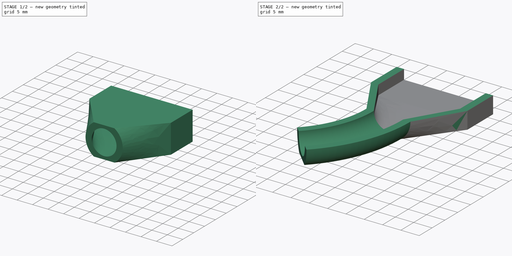
[diagram: build sequence overview — one tinted view per stage of 2, left to right]
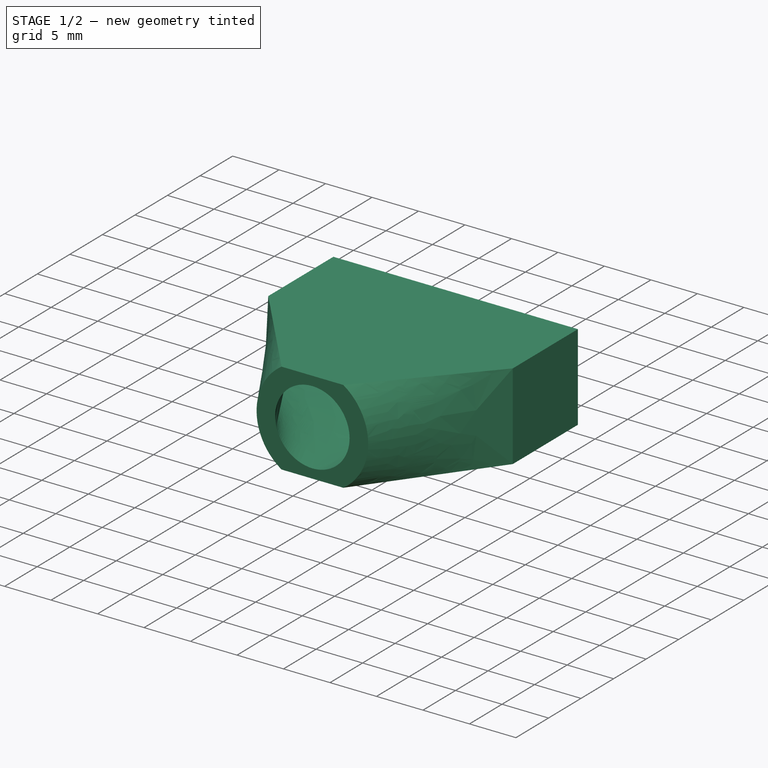
[diagram: stage 1 of 2 — iso view after this stage's code; geometry added in this stage tinted green]
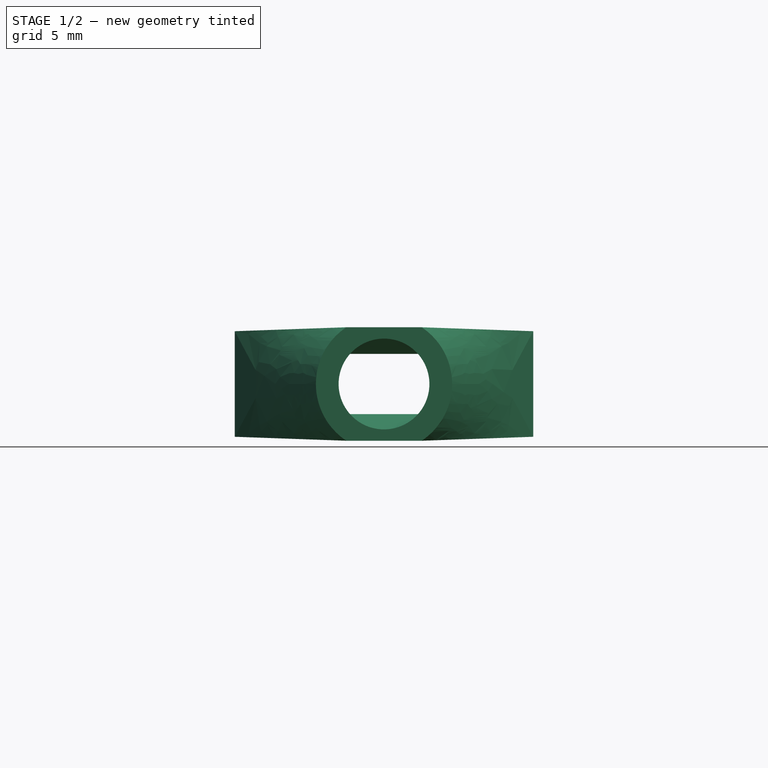
[diagram: stage 1 of 2 — front view after this stage's code; geometry added in this stage tinted green]
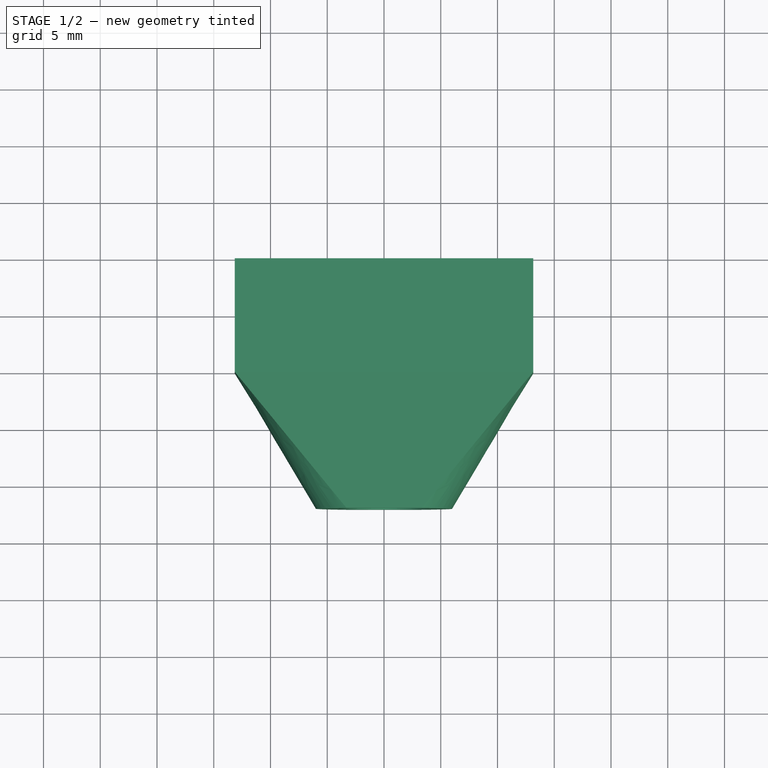
[diagram: stage 1 of 2 — top view after this stage's code; geometry added in this stage tinted green]
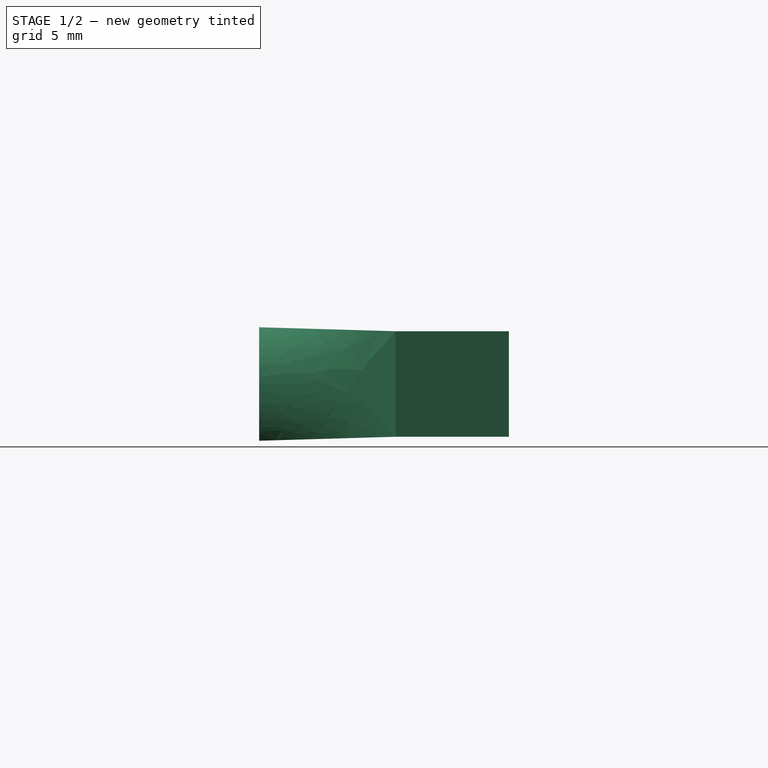
[diagram: stage 1 of 2 — right view after this stage's code; geometry added in this stage tinted green]
FCSTD DOCUMENT  (FreeCAD 0.20R29410 (Git))
Label: jst-xh_sleeve
License: All rights reserved
LicenseURL: http://en.wikipedia.org/wiki/All_rights_reserved
objects: Sketcher::SketchObject×5, PartDesign::Pad×1, PartDesign::AdditiveLoft×1, PartDesign::AdditivePipe×1, PartDesign::Pocket×1, PartDesign::Body×1
note: 14 computed .brp shape members not serialized (recipe doc carries the construction recipe); baked Part::Feature solids carry a one-line shape summary decoded from their .brp

FEATURE [Sketcher::SketchObject] Sketch
  FullyConstrained = true
  MapMode = 5
  Placement = pos=(0,0,0) rot=(1,0,0;1.5708rad)
  Support = -> [XZ_Plane]
  sketch-geometry (14):
    g0: LineSegment StartX=-11.15 StartY=2.65 StartZ=0 EndX=11.15 EndY=2.65 EndZ=0
    g1: LineSegment StartX=11.15 StartY=2.65 StartZ=0 EndX=11.15 EndY=-2.65 EndZ=0
    g2: LineSegment StartX=11.15 StartY=-2.65 StartZ=0 EndX=-11.15 EndY=-2.65 EndZ=0
    g3: LineSegment StartX=-11.15 StartY=-2.65 StartZ=0 EndX=-11.15 EndY=2.65 EndZ=0
    g4: LineSegment StartX=-11.15 StartY=2.65 StartZ=0 EndX=0 EndY=0 EndZ=0
    g5: LineSegment StartX=0 StartY=0 StartZ=0 EndX=11.15 EndY=2.65 EndZ=0
    g6: LineSegment StartX=0 StartY=0 StartZ=0 EndX=11.15 EndY=-2.65 EndZ=0
    g7: LineSegment StartX=-13.15 StartY=4.65 StartZ=0 EndX=13.15 EndY=4.65 EndZ=0
    g8: LineSegment StartX=13.15 StartY=4.65 StartZ=0 EndX=13.15 EndY=-4.65 EndZ=0
    g9: LineSegment StartX=13.15 StartY=-4.65 StartZ=0 EndX=-13.15 EndY=-4.65 EndZ=0
    g10: LineSegment StartX=-13.15 StartY=-4.65 StartZ=0 EndX=-13.15 EndY=4.65 EndZ=0
    g11: LineSegment StartX=-13.15 StartY=4.65 StartZ=0 EndX=-11.15 EndY=2.65 EndZ=0
    g12: LineSegment StartX=11.15 StartY=-2.65 StartZ=0 EndX=13.15 EndY=-4.65 EndZ=0
    g13: LineSegment StartX=11.15 StartY=2.65 StartZ=0 EndX=13.15 EndY=4.65 EndZ=0
  constraints (36):
    c: Coincident(g0,g1)
    c: Coincident(g1,g2)
    c: Coincident(g2,g3)
    c: Coincident(g3,g0)
    c: Horizontal(g0)
    c: Horizontal(g2)
    c: Vertical(g1)
    c: Vertical(g3)
    c: Distance(g0) = 22.3
    c: Distance(g1) = 5.3
    c: Coincident(g0,g4)
    c: Coincident(g4,g-1)
    c: Coincident(g4,g5)
    c: Coincident(g5,g0)
    c: Coincident(g6,g4)
    c: Coincident(g6,g1)
    c: Equal(g4,g5)
    c: Equal(g5,g6)
    c: Coincident(g7,g8)
    c: Coincident(g8,g9)
    c: Coincident(g9,g10)
    c: Coincident(g10,g7)
    c: Horizontal(g7)
    c: Horizontal(g9)
    c: Vertical(g8)
    c: Vertical(g10)
    c: Coincident(g11,g7)
    c: Coincident(g11,g0)
    c: Coincident(g12,g1)
    c: Coincident(g12,g8)
    c: Coincident(g13,g0)
    c: Coincident(g13,g7)
    c: Equal(g12,g13)
    c: Equal(g13,g11)
    c: DistanceX(g7,g0) = 2
    c: DistanceY(g0,g7) = 2
FEATURE [PartDesign::Pad] Pad
  Direction = (0,-1,2e-16)
  Length = 10
  Length2 = 10
  Placement = pos=(0,0,0) rot=(1,0,0;1.5708rad)
  Profile = -> Sketch
  ReferenceAxis = -> Sketch [N_Axis]
  Type = 0
FEATURE [Sketcher::SketchObject] Sketch001
  AttachmentOffset = pos=(0,0,12) rot=(0,1,0;0rad)
  ExternalGeometry = -> [Pad]
  FullyConstrained = true
  MapMode = 5
  Placement = pos=(0,-22,9.7e-15) rot=(1,0,0;1.5708rad)
  Support = -> [Pad]
  sketch-geometry (7):
    g0: Circle CenterX=0 CenterY=0 CenterZ=0 NormalX=0 NormalY=0 NormalZ=1 AngleXU=0 Radius=4
    g1: Circle CenterX=0 CenterY=0 CenterZ=0 NormalX=0 NormalY=0 NormalZ=1 AngleXU=0 Radius=6
    g2: LineSegment StartX=-3.31662 StartY=-5 StartZ=0 EndX=3.31662 EndY=-5 EndZ=0
    g3: GeomPoint X=0 Y=-6 Z=0
    g4: LineSegment StartX=-3.31662 StartY=5 StartZ=0 EndX=3.31662 EndY=5 EndZ=0
    g5: ArcOfCircle CenterX=0 CenterY=0 CenterZ=0 NormalX=0 NormalY=0 NormalZ=1 AngleXU=0 Radius=6 StartAngle=2.15648 EndAngle=4.1267
    g6: ArcOfCircle CenterX=0 CenterY=0 CenterZ=0 NormalX=0 NormalY=0 NormalZ=1 AngleXU=0 Radius=6 StartAngle=5.29807 EndAngle=7.2683
  constraints (18):
    c: Coincident(g0,g-1)
    c: Diameter(g0) = 8
    c: Coincident(g1,g0)
    c: Diameter(g1) = 12
    c: PointOnObject(g2,g1)
    c: Horizontal(g2)
    c: PointOnObject(g3,g1)
    c: PointOnObject(g3,g-2)
    c: DistanceY(g3,g2) = 1
    c: PointOnObject(g4,g1)
    c: Horizontal(g4)
    c: Coincident(g5,g0)
    c: Coincident(g5,g2)
    c: Coincident(g5,g4)
    c: Coincident(g6,g0)
    c: Coincident(g6,g2)
    c: Coincident(g6,g4)
    c: Vertical(g4,g2)
FEATURE [Sketcher::SketchObject] Sketch002
  ExternalGeometry = -> [Pad]
  FullyConstrained = true
  MapMode = 5
  Placement = pos=(0,-10,4.4e-15) rot=(1,0,0;1.5708rad)
  Support = -> [Pad]
  sketch-geometry (8):
    g0: LineSegment StartX=-11.15 StartY=2.65 StartZ=0 EndX=11.15 EndY=2.65 EndZ=0
    g1: LineSegment StartX=11.15 StartY=2.65 StartZ=0 EndX=11.15 EndY=-2.65 EndZ=0
    g2: LineSegment StartX=11.15 StartY=-2.65 StartZ=0 EndX=-11.15 EndY=-2.65 EndZ=0
    g3: LineSegment StartX=-11.15 StartY=-2.65 StartZ=0 EndX=-11.15 EndY=2.65 EndZ=0
    g4: LineSegment StartX=-13.15 StartY=4.65 StartZ=0 EndX=13.15 EndY=4.65 EndZ=0
    g5: LineSegment StartX=13.15 StartY=4.65 StartZ=0 EndX=13.15 EndY=-4.65 EndZ=0
    g6: LineSegment StartX=13.15 StartY=-4.65 StartZ=0 EndX=-13.15 EndY=-4.65 EndZ=0
    g7: LineSegment StartX=-13.15 StartY=-4.65 StartZ=0 EndX=-13.15 EndY=4.65 EndZ=0
  constraints (20):
    c: Coincident(g0,g1)
    c: Coincident(g1,g2)
    c: Coincident(g2,g3)
    c: Coincident(g3,g0)
    c: Horizontal(g0)
    c: Horizontal(g2)
    c: Vertical(g1)
    c: Vertical(g3)
    c: Coincident(g0,g-3)
    c: Coincident(g1,g-4)
    c: Coincident(g4,g5)
    c: Coincident(g5,g6)
    c: Coincident(g6,g7)
    c: Coincident(g7,g4)
    c: Horizontal(g4)
    c: Horizontal(g6)
    c: Vertical(g5)
    c: Vertical(g7)
    c: Coincident(g4,g-5)
    c: Coincident(g5,g-6)
FEATURE [PartDesign::AdditiveLoft] AdditiveLoft
  BaseFeature = -> Pad
  Closed = false
  Placement = pos=(0,0,0) rot=(1,0,0;1.5708rad)
  Profile = -> Sketch002
  Ruled = false
  Sections = -> [Sketch001]
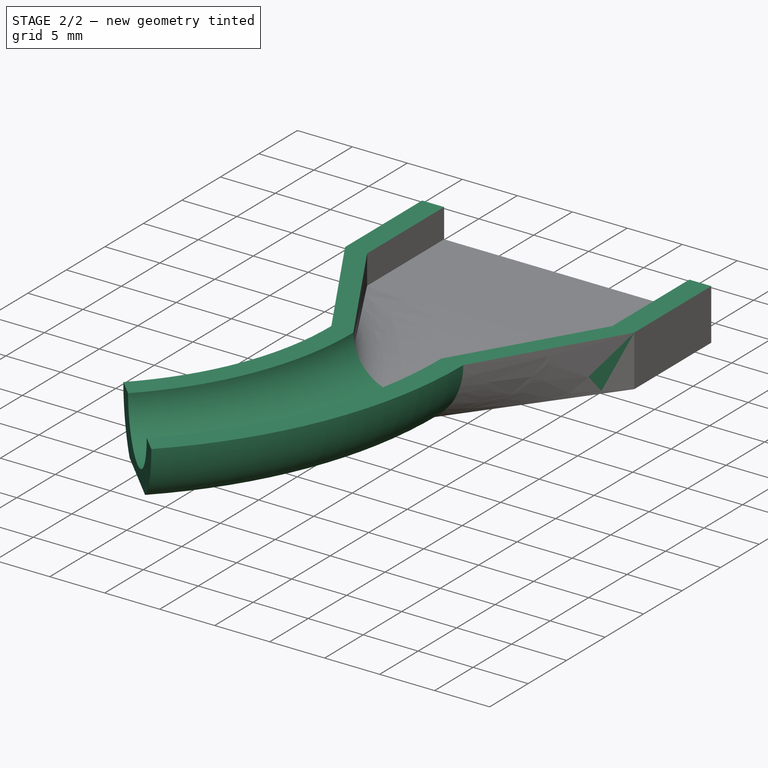
[diagram: stage 2 of 2 — iso view after this stage's code; geometry added in this stage tinted green]
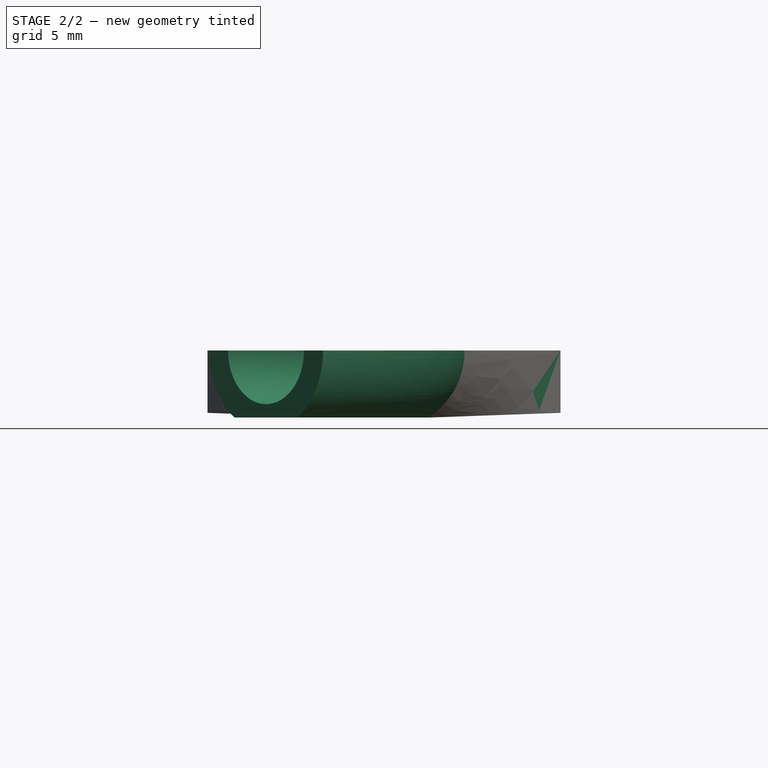
[diagram: stage 2 of 2 — front view after this stage's code; geometry added in this stage tinted green]
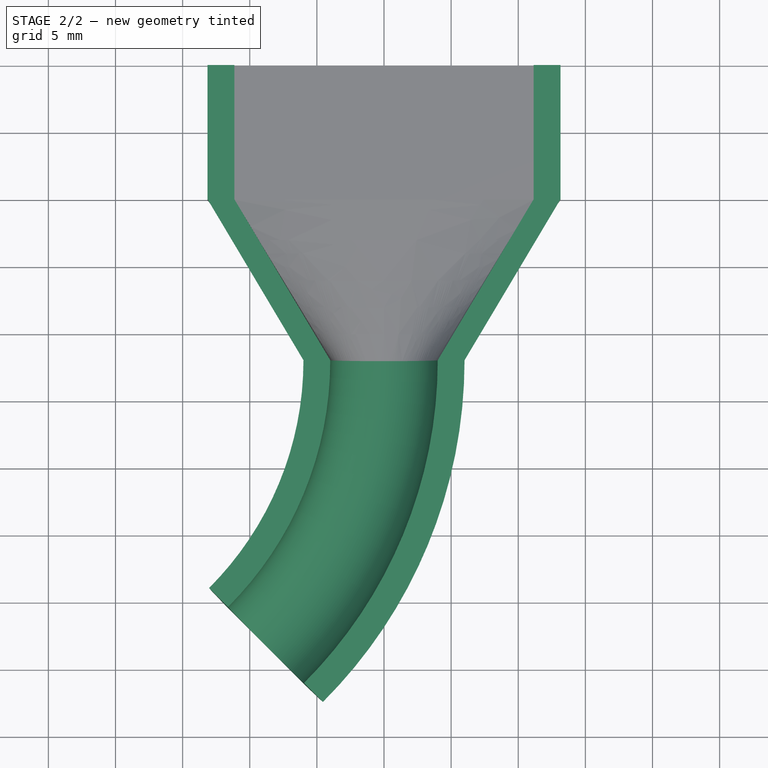
[diagram: stage 2 of 2 — top view after this stage's code; geometry added in this stage tinted green]
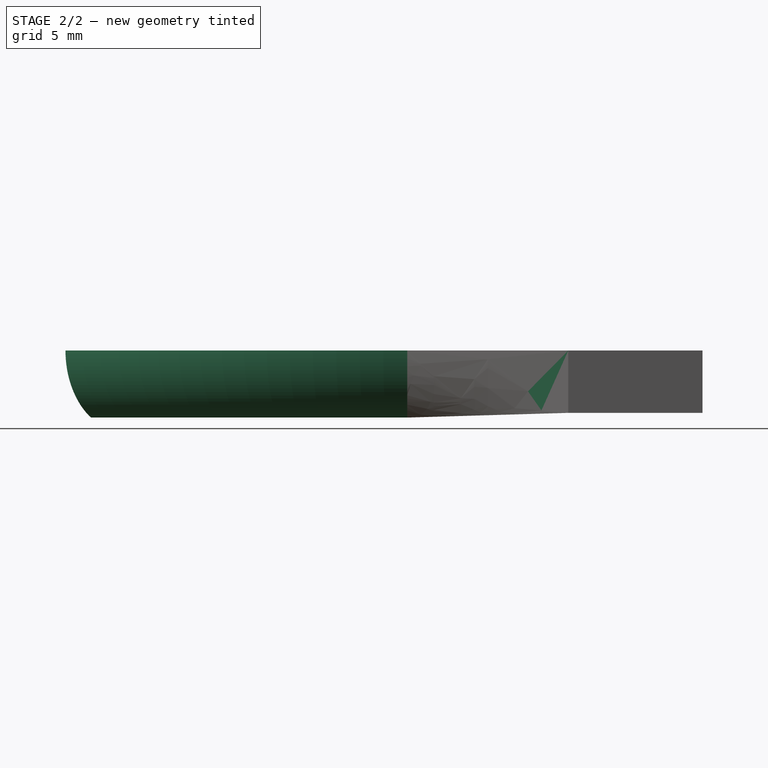
[diagram: stage 2 of 2 — right view after this stage's code; geometry added in this stage tinted green]
FEATURE [Sketcher::SketchObject] Sketch003
  ExternalGeometry = -> [AdditiveLoft]
  FullyConstrained = true
  MapMode = 5
  Support = -> [XY_Plane]
  sketch-geometry (3):
    g0: ArcOfCircle CenterX=-30 CenterY=-22 CenterZ=0 NormalX=0 NormalY=0 NormalZ=1 AngleXU=0 Radius=30 StartAngle=5.49779 EndAngle=6.28319
    g1: LineSegment StartX=-13.0294 StartY=-38.9706 StartZ=0 EndX=-8.7868 EndY=-43.2132 EndZ=0
    g2: LineSegment StartX=-8.7868 StartY=-43.2132 StartZ=0 EndX=-4.54416 EndY=-47.4558 EndZ=0
  constraints (11):
    c: Angle(g0) = 0.785398
    c: Radius(g0) = 30
    c: Coincident(g1,g0)
    c: Parallel(g2,g1)
    c: Perpendicular(g0,g1)
    c: Equal(g2,g1)
    c: Distance(g2,g1) = 12
    c: Coincident(g2,g0)
    c: Horizontal(g0,g-3)
    c: PointOnObject(g0,g-3)
    c: PointOnObject(g0,g-2)
FEATURE [PartDesign::AdditivePipe] AdditivePipe
  AuxilleryCurvelinear = true
  AuxillerySpineTangent = false
  BaseFeature = -> AdditiveLoft
  Binormal = (0,0,0)
  Mode = 0
  Placement = pos=(0,0,0) rot=(1,0,0;1.5708rad)
  Profile = -> Sketch001
  Spine = -> Sketch003
  SpineTangent = false
  Transformation = 0
  Transition = 0
FEATURE [Sketcher::SketchObject] Sketch004
  ExternalGeometry = -> [AdditivePipe]
  FullyConstrained = true
  MapMode = 5
  Placement = pos=(0,0,0) rot=(-1,0,0;1.5708rad)
  Support = -> [AdditivePipe]
  sketch-geometry (4):
    g0: LineSegment StartX=-13.15 StartY=0 StartZ=0 EndX=15.15 EndY=0 EndZ=0
    g1: LineSegment StartX=-13.15 StartY=-6.65 StartZ=0 EndX=-13.15 EndY=0 EndZ=0
    g2: LineSegment StartX=-13.15 StartY=-6.65 StartZ=0 EndX=15.15 EndY=-6.65 EndZ=0
    g3: LineSegment StartX=15.15 StartY=-6.65 StartZ=0 EndX=15.15 EndY=0 EndZ=0
  constraints (12):
    c: Coincident(g1,g0)
    c: Horizontal(g0)
    c: Vertical(g1)
    c: PointOnObject(g0,g-3)
    c: PointOnObject(g0,g-1)
    c: Coincident(g1,g2)
    c: Horizontal(g2)
    c: Coincident(g2,g3)
    c: Coincident(g3,g0)
    c: Vertical(g3)
    c: DistanceY(g2,g-4) = 2
    c: DistanceX(g-4,g2) = 2
FEATURE [PartDesign::Pocket] Pocket
  BaseFeature = -> AdditivePipe
  Direction = (0,-1,7e-16)
  Length = 49
  Length2 = 5
  Placement = pos=(0,0,0) rot=(1,0,0;1.5708rad)
  Profile = -> Sketch004
  ReferenceAxis = -> Sketch004 [N_Axis]
  Type = 0
FEATURE [PartDesign::Body] Body
  Group = -> [Sketch,Pad,Sketch001,Sketch002,AdditiveLoft,Sketch003,AdditivePipe,Sketch004,Pocket]
  Origin = -> Origin
  Tip = -> Pocket
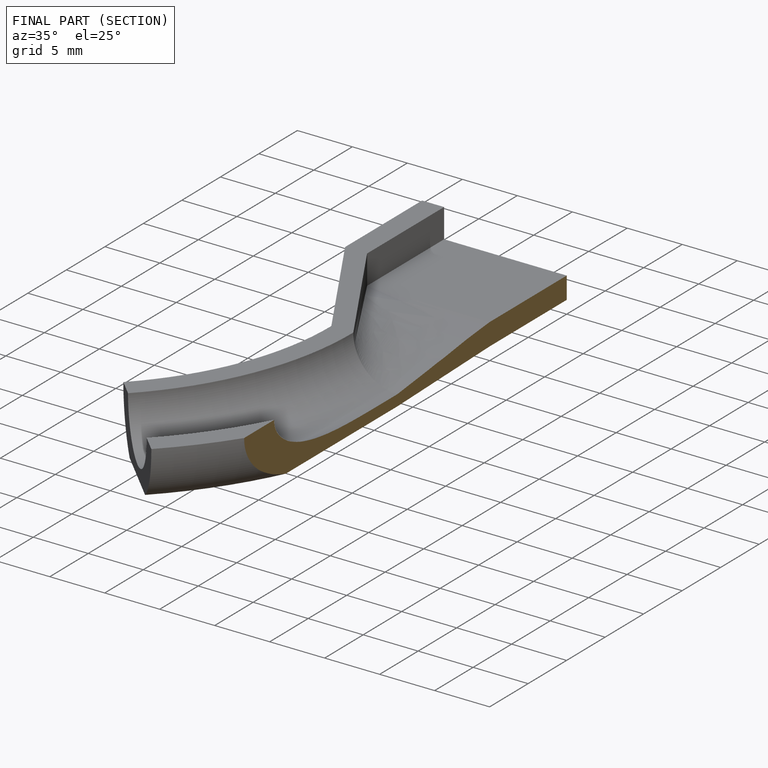
[diagram: finished part — half-section view (interior)]
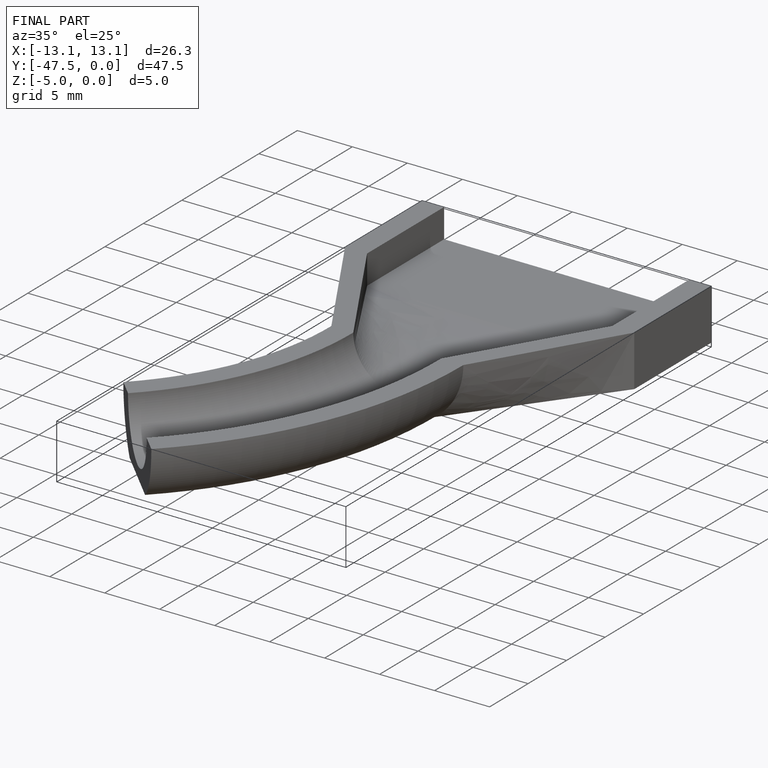
[diagram: finished part — iso view with bounding-box wireframe]
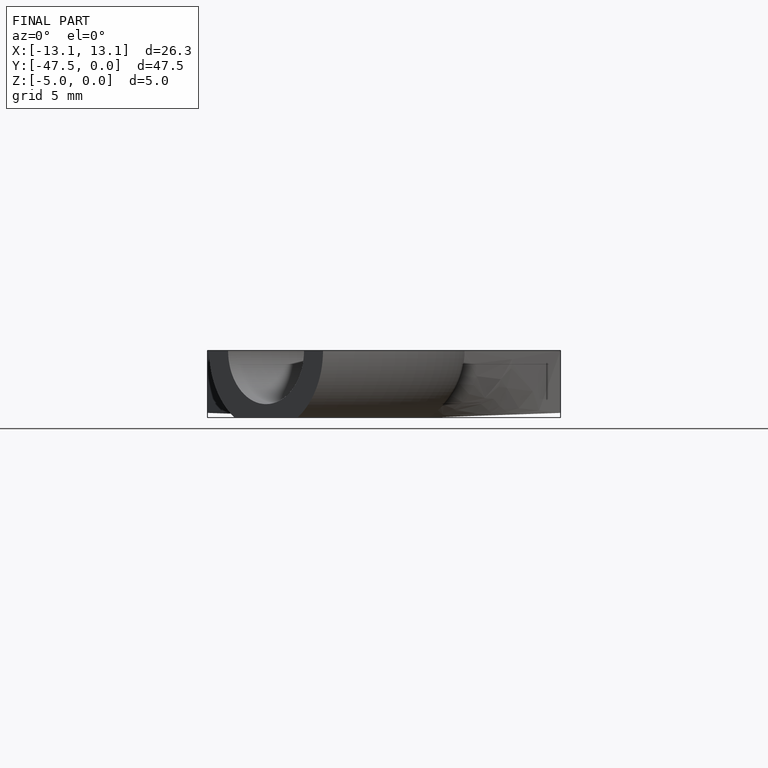
[diagram: finished part — front view with bounding-box wireframe]
